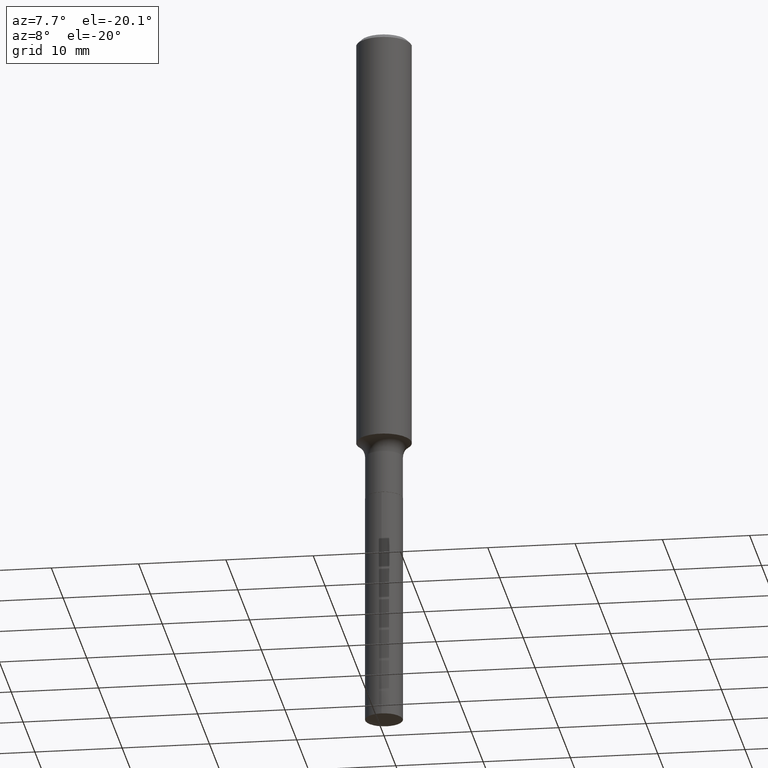
[diagram: clean part render]
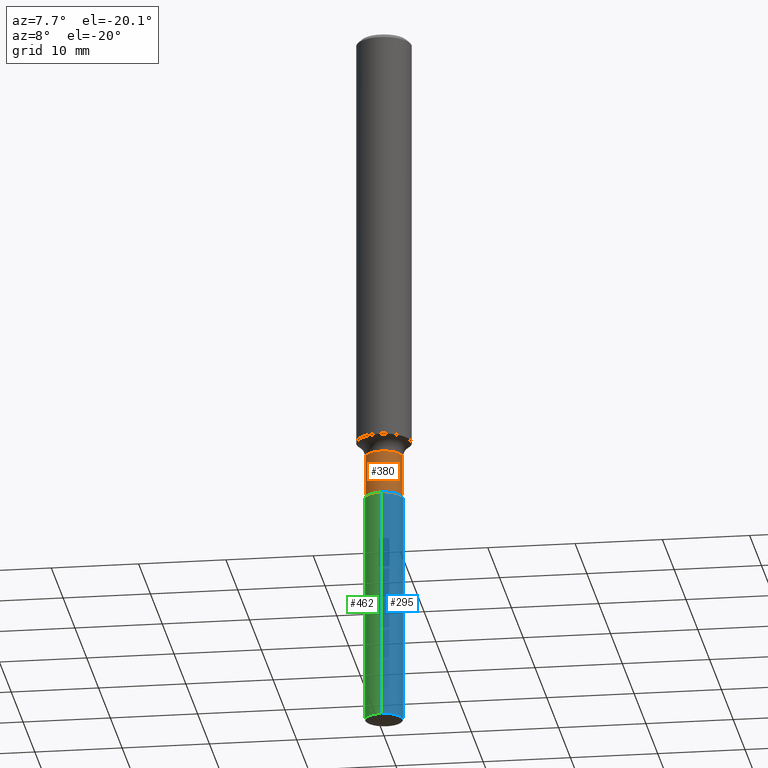
[diagram: same view with three faces highlighted in distinct colors, each labeled with its STEP entity id]
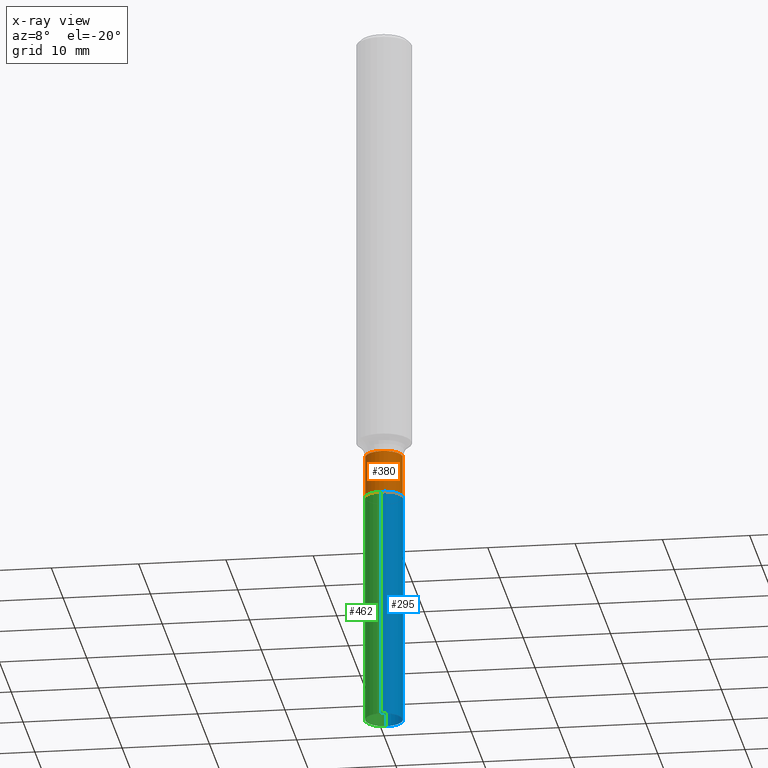
[diagram: x-ray of the same camera — body ghosted, the three highlighted faces saturated]
A machine part, auxiliary view with three faces highlighted in distinct colors.
The next image is the same camera in x-ray (body ghosted, the three faces saturated) — at least one of them is partly hidden behind the body in this view.
Their STEP definitions:

[orange] entity #380 — the highlighted cylindrical surface (edge-blend (fillet) strip) has radius 2.1526 mm, axis along (-0, 0, 1).
#3 = EDGE_CURVE ( 'NONE', #374, #240, #246, .T. ) ;
#17 = ORIENTED_EDGE ( 'NONE', *, *, #480, .T. ) ;
#23 = EDGE_CURVE ( 'NONE', #374, #287, #163, .T. ) ;
#44 = AXIS2_PLACEMENT_3D ( 'NONE', #394, #195, #276 ) ;
#57 = DIRECTION ( 'NONE',  ( -2.445468806185136877E-29, 3.491481338843145188E-15, 1.000000000000000000 ) ) ;
#64 = CARTESIAN_POINT ( 'NONE',  ( 5.304221840615561619E-29, -7.573023023950782248E-15, -2.169000000000000039 ) ) ;
#83 = EDGE_LOOP ( 'NONE', ( #397, #472, #17, #301 ) ) ;
#105 = DIRECTION ( 'NONE',  ( 1.000000000000000000, -6.982962677686267499E-15, 4.876176775795935793E-29 ) ) ;
#128 = VERTEX_POINT ( 'NONE', #388 ) ;
#140 = AXIS2_PLACEMENT_3D ( 'NONE', #424, #303, #105 ) ;
#145 = FACE_OUTER_BOUND ( 'NONE', #83, .T. ) ;
#156 = EDGE_CURVE ( 'NONE', #240, #128, #467, .T. ) ;
#163 = CIRCLE ( 'NONE', #391, 0.08474999999999999201 ) ;
#182 = CARTESIAN_POINT ( 'NONE',  ( -0.08474999999999999201, -6.631466069258544482E-15, -2.169000000000000039 ) ) ;
#185 = DIRECTION ( 'NONE',  ( -2.445468806185136877E-29, 3.491481338843145188E-15, 1.000000000000000000 ) ) ;
#195 = DIRECTION ( 'NONE',  ( -2.445468806185136597E-29, 3.491481338843145583E-15, 1.000000000000000000 ) ) ;
#201 = VECTOR ( 'NONE', #185, 39.37007874015748143 ) ;
#229 = CARTESIAN_POINT ( 'NONE',  ( 0.08474999999999999201, -5.918060869339111077E-16, 4.132559817487055052E-30 ) ) ;
#240 = VERTEX_POINT ( 'NONE', #412 ) ;
#246 = LINE ( 'NONE', #250, #491 ) ;
#250 = CARTESIAN_POINT ( 'NONE',  ( -0.08474999999999999201, 6.021849685566848507E-16, -4.168797488991032273E-30 ) ) ;
#276 = DIRECTION ( 'NONE',  ( 1.000000000000000000, -6.982962677686268288E-15, 0.000000000000000000 ) ) ;
#287 = VERTEX_POINT ( 'NONE', #452 ) ;
#298 = DIRECTION ( 'NONE',  ( -2.445468806185136597E-29, 3.491481338843145583E-15, 1.000000000000000000 ) ) ;
#301 = ORIENTED_EDGE ( 'NONE', *, *, #156, .F. ) ;
#303 = DIRECTION ( 'NONE',  ( -2.445468806185136597E-29, 3.491481338843145583E-15, 1.000000000000000000 ) ) ;
#348 = CYLINDRICAL_SURFACE ( 'NONE', #140, 0.08474999999999999201 ) ;
#374 = VERTEX_POINT ( 'NONE', #182 ) ;
#380 = ADVANCED_FACE ( 'NONE', ( #145 ), #348, .T. ) ;
#381 = LINE ( 'NONE', #229, #201 ) ;
#388 = CARTESIAN_POINT ( 'NONE',  ( 0.08474999999999997813, -7.486085138613587426E-15, -1.974600000000000133 ) ) ;
#391 = AXIS2_PLACEMENT_3D ( 'NONE', #64, #298, #455 ) ;
#394 = CARTESIAN_POINT ( 'NONE',  ( 4.828822704693170874E-29, -6.894279051679675629E-15, -1.974600000000000133 ) ) ;
#397 = ORIENTED_EDGE ( 'NONE', *, *, #3, .F. ) ;
#412 = CARTESIAN_POINT ( 'NONE',  ( -0.08474999999999997813, -6.631466069258544482E-15, -1.974600000000000133 ) ) ;
#424 = CARTESIAN_POINT ( 'NONE',  ( 0.000000000000000000, 0.000000000000000000, 0.000000000000000000 ) ) ;
#452 = CARTESIAN_POINT ( 'NONE',  ( 0.08474999999999999201, -8.164829110884693258E-15, -2.169000000000000039 ) ) ;
#455 = DIRECTION ( 'NONE',  ( 1.000000000000000000, -6.982962677686267499E-15, 0.000000000000000000 ) ) ;
#467 = CIRCLE ( 'NONE', #44, 0.08474999999999997813 ) ;
#472 = ORIENTED_EDGE ( 'NONE', *, *, #23, .T. ) ;
#480 = EDGE_CURVE ( 'NONE', #287, #128, #381, .T. ) ;
#491 = VECTOR ( 'NONE', #57, 39.37007874015748143 ) ;

[blue] entity #295 — the highlighted cylindrical surface (edge-blend (fillet) strip) has radius 2.1526 mm, axis along (-0, 0, 1).
#7 = ORIENTED_EDGE ( 'NONE', *, *, #429, .T. ) ;
#10 = AXIS2_PLACEMENT_3D ( 'NONE', #400, #432, #192 ) ;
#27 = CARTESIAN_POINT ( 'NONE',  ( -5.918060869338579582E-16, -0.08475000000000758316, -2.169499999999999762 ) ) ;
#51 = CARTESIAN_POINT ( 'NONE',  ( 6.021849685567637368E-16, 0.08474999999999241473, -2.169500000000000206 ) ) ;
#66 = VERTEX_POINT ( 'NONE', #51 ) ;
#71 = ORIENTED_EDGE ( 'NONE', *, *, #375, .F. ) ;
#92 = CIRCLE ( 'NONE', #10, 0.08474999999999999201 ) ;
#99 = ORIENTED_EDGE ( 'NONE', *, *, #459, .T. ) ;
#100 = FACE_OUTER_BOUND ( 'NONE', #389, .T. ) ;
#103 = VERTEX_POINT ( 'NONE', #318 ) ;
#109 = DIRECTION ( 'NONE',  ( -2.445486253200899634E-29, 3.491456353723550485E-15, 1.000000000000000000 ) ) ;
#141 = DIRECTION ( 'NONE',  ( -2.445486253200899915E-29, 3.491456353723550090E-15, 1.000000000000000000 ) ) ;
#152 = DIRECTION ( 'NONE',  ( -6.982962677686265922E-15, -1.000000000000000000, 3.223419461550753343E-15 ) ) ;
#155 = CARTESIAN_POINT ( 'NONE',  ( 6.021849685567378030E-16, 0.08474999999999241473, -2.169500000000000206 ) ) ;
#184 = CARTESIAN_POINT ( 'NONE',  ( 5.305444575018654421E-29, -7.574768764620204541E-15, -2.169499999999999762 ) ) ;
#192 = DIRECTION ( 'NONE',  ( -6.982962677686265922E-15, -1.000000000000000000, 6.446838923101506686E-15 ) ) ;
#212 = DIRECTION ( 'NONE',  ( -2.445486253200899634E-29, 3.491456353723550485E-15, 1.000000000000000000 ) ) ;
#226 = LINE ( 'NONE', #155, #323 ) ;
#245 = CARTESIAN_POINT ( 'NONE',  ( 5.305444575018654421E-29, -7.574768764620204541E-15, -2.169499999999999762 ) ) ;
#262 = DIRECTION ( 'NONE',  ( -2.445486253200899915E-29, 3.491456353723550090E-15, 1.000000000000000000 ) ) ;
#265 = CARTESIAN_POINT ( 'NONE',  ( -5.918060869338321230E-16, -0.08475000000001123301, -3.223278427642505939 ) ) ;
#278 = ORIENTED_EDGE ( 'NONE', *, *, #324, .F. ) ;
#295 = ADVANCED_FACE ( 'NONE', ( #100 ), #416, .T. ) ;
#304 = CIRCLE ( 'NONE', #340, 0.08474999999999999201 ) ;
#318 = CARTESIAN_POINT ( 'NONE',  ( 6.021849685567635396E-16, 0.08474999999998872324, -3.223278427642507271 ) ) ;
#323 = VECTOR ( 'NONE', #262, 39.37007874015748143 ) ;
#324 = EDGE_CURVE ( 'NONE', #444, #66, #304, .T. ) ;
#340 = AXIS2_PLACEMENT_3D ( 'NONE', #184, #109, #152 ) ;
#343 = LINE ( 'NONE', #383, #461 ) ;
#367 = DIRECTION ( 'NONE',  ( -6.982962677686265922E-15, -1.000000000000000000, 3.223419461550753343E-15 ) ) ;
#375 = EDGE_CURVE ( 'NONE', #475, #444, #343, .T. ) ;
#383 = CARTESIAN_POINT ( 'NONE',  ( -5.918060869338579582E-16, -0.08475000000000758316, -2.169499999999999762 ) ) ;
#389 = EDGE_LOOP ( 'NONE', ( #99, #7, #278, #71 ) ) ;
#400 = CARTESIAN_POINT ( 'NONE',  ( 7.882445233738062826E-29, -1.125399015122944805E-14, -3.223278427642506827 ) ) ;
#416 = CYLINDRICAL_SURFACE ( 'NONE', #446, 0.08474999999999999201 ) ;
#429 = EDGE_CURVE ( 'NONE', #103, #66, #226, .T. ) ;
#432 = DIRECTION ( 'NONE',  ( -2.445486253200899634E-29, 3.491456353723550485E-15, 1.000000000000000000 ) ) ;
#444 = VERTEX_POINT ( 'NONE', #27 ) ;
#446 = AXIS2_PLACEMENT_3D ( 'NONE', #245, #212, #367 ) ;
#459 = EDGE_CURVE ( 'NONE', #475, #103, #92, .T. ) ;
#461 = VECTOR ( 'NONE', #141, 39.37007874015748143 ) ;
#475 = VERTEX_POINT ( 'NONE', #265 ) ;

[green] entity #462 — the highlighted cylindrical surface (edge-blend (fillet) strip) has radius 2.1526 mm, axis along (-0, 0, 1).
#4 = CIRCLE ( 'NONE', #484, 0.08474999999999999201 ) ;
#13 = ORIENTED_EDGE ( 'NONE', *, *, #375, .T. ) ;
#20 = EDGE_LOOP ( 'NONE', ( #489, #153, #13, #123 ) ) ;
#27 = CARTESIAN_POINT ( 'NONE',  ( -5.918060869338579582E-16, -0.08475000000000758316, -2.169499999999999762 ) ) ;
#51 = CARTESIAN_POINT ( 'NONE',  ( 6.021849685567637368E-16, 0.08474999999999241473, -2.169500000000000206 ) ) ;
#60 = EDGE_CURVE ( 'NONE', #103, #475, #215, .T. ) ;
#66 = VERTEX_POINT ( 'NONE', #51 ) ;
#103 = VERTEX_POINT ( 'NONE', #318 ) ;
#112 = DIRECTION ( 'NONE',  ( -6.982962677686265922E-15, -1.000000000000000000, 3.223419461550753343E-15 ) ) ;
#116 = FACE_OUTER_BOUND ( 'NONE', #20, .T. ) ;
#123 = ORIENTED_EDGE ( 'NONE', *, *, #453, .F. ) ;
#141 = DIRECTION ( 'NONE',  ( -2.445486253200899915E-29, 3.491456353723550090E-15, 1.000000000000000000 ) ) ;
#153 = ORIENTED_EDGE ( 'NONE', *, *, #60, .T. ) ;
#155 = CARTESIAN_POINT ( 'NONE',  ( 6.021849685567378030E-16, 0.08474999999999241473, -2.169500000000000206 ) ) ;
#157 = DIRECTION ( 'NONE',  ( -2.445486253200899634E-29, 3.491456353723550485E-15, 1.000000000000000000 ) ) ;
#173 = AXIS2_PLACEMENT_3D ( 'NONE', #439, #157, #356 ) ;
#215 = CIRCLE ( 'NONE', #173, 0.08474999999999999201 ) ;
#220 = CARTESIAN_POINT ( 'NONE',  ( 5.305444575018654421E-29, -7.574768764620204541E-15, -2.169499999999999762 ) ) ;
#226 = LINE ( 'NONE', #155, #323 ) ;
#262 = DIRECTION ( 'NONE',  ( -2.445486253200899915E-29, 3.491456353723550090E-15, 1.000000000000000000 ) ) ;
#265 = CARTESIAN_POINT ( 'NONE',  ( -5.918060869338321230E-16, -0.08475000000001123301, -3.223278427642505939 ) ) ;
#273 = CYLINDRICAL_SURFACE ( 'NONE', #353, 0.08474999999999999201 ) ;
#279 = CARTESIAN_POINT ( 'NONE',  ( 5.305444575018654421E-29, -7.574768764620204541E-15, -2.169499999999999762 ) ) ;
#294 = DIRECTION ( 'NONE',  ( -2.445486253200899634E-29, 3.491456353723550485E-15, 1.000000000000000000 ) ) ;
#318 = CARTESIAN_POINT ( 'NONE',  ( 6.021849685567635396E-16, 0.08474999999998872324, -3.223278427642507271 ) ) ;
#323 = VECTOR ( 'NONE', #262, 39.37007874015748143 ) ;
#341 = DIRECTION ( 'NONE',  ( -6.982962677686265922E-15, -1.000000000000000000, 3.223419461550753343E-15 ) ) ;
#343 = LINE ( 'NONE', #383, #461 ) ;
#353 = AXIS2_PLACEMENT_3D ( 'NONE', #220, #386, #112 ) ;
#356 = DIRECTION ( 'NONE',  ( -6.982962677686265922E-15, -1.000000000000000000, 6.446838923101506686E-15 ) ) ;
#375 = EDGE_CURVE ( 'NONE', #475, #444, #343, .T. ) ;
#383 = CARTESIAN_POINT ( 'NONE',  ( -5.918060869338579582E-16, -0.08475000000000758316, -2.169499999999999762 ) ) ;
#386 = DIRECTION ( 'NONE',  ( -2.445486253200899634E-29, 3.491456353723550485E-15, 1.000000000000000000 ) ) ;
#429 = EDGE_CURVE ( 'NONE', #103, #66, #226, .T. ) ;
#439 = CARTESIAN_POINT ( 'NONE',  ( 7.882445233738062826E-29, -1.125399015122944805E-14, -3.223278427642506827 ) ) ;
#444 = VERTEX_POINT ( 'NONE', #27 ) ;
#453 = EDGE_CURVE ( 'NONE', #66, #444, #4, .T. ) ;
#461 = VECTOR ( 'NONE', #141, 39.37007874015748143 ) ;
#462 = ADVANCED_FACE ( 'NONE', ( #116 ), #273, .T. ) ;
#475 = VERTEX_POINT ( 'NONE', #265 ) ;
#484 = AXIS2_PLACEMENT_3D ( 'NONE', #279, #294, #341 ) ;
#489 = ORIENTED_EDGE ( 'NONE', *, *, #429, .F. ) ;